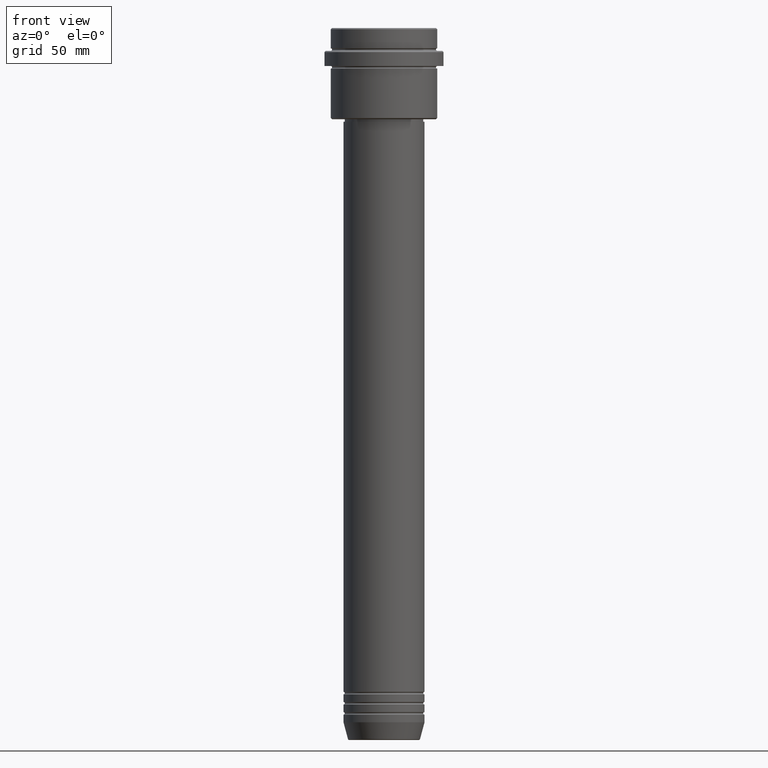
[diagram: clean part render]
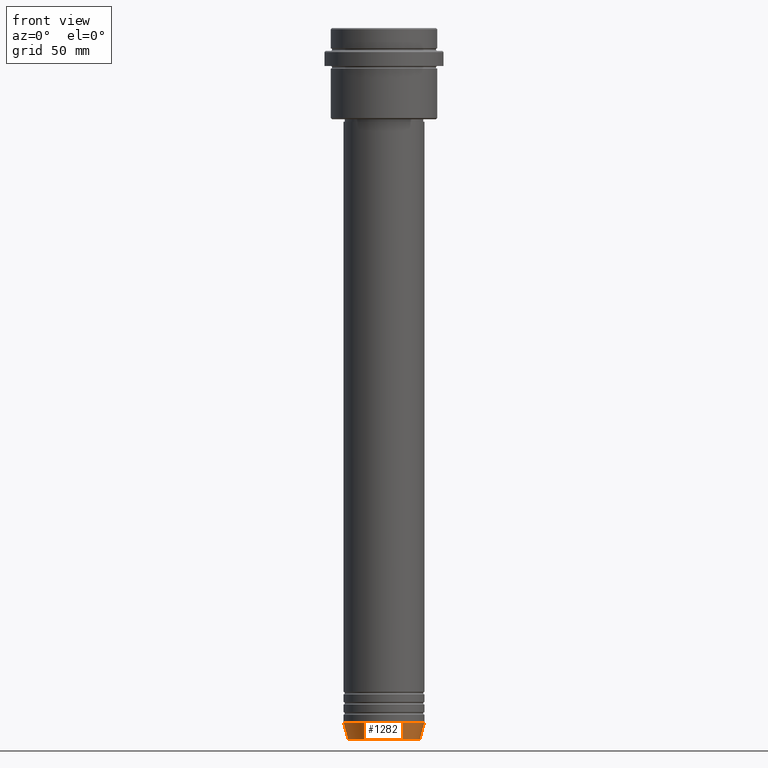
[diagram: same view with one face highlighted and labeled with its STEP entity id]
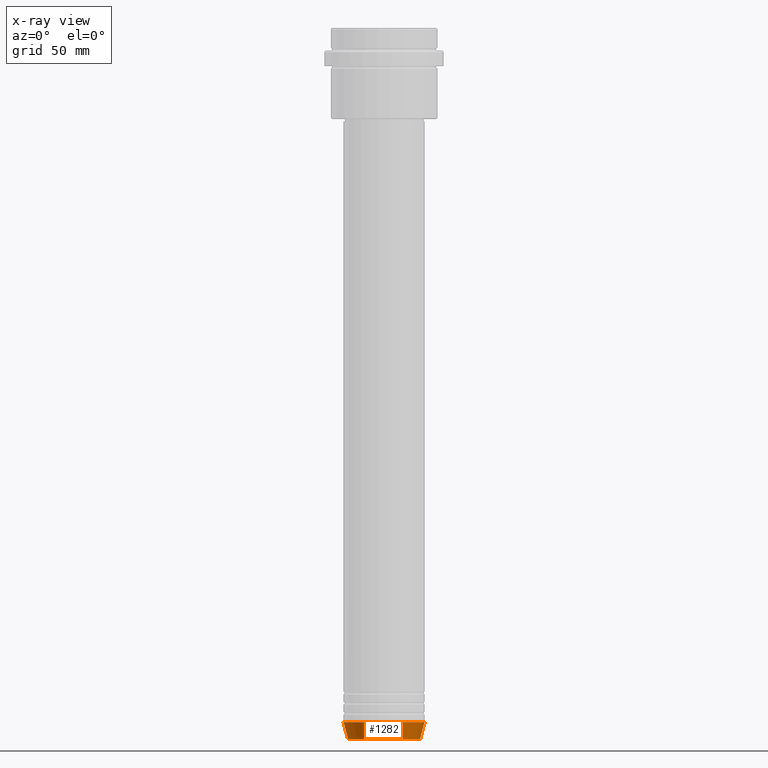
[diagram: x-ray of the same camera — body ghosted, the highlighted face saturated]
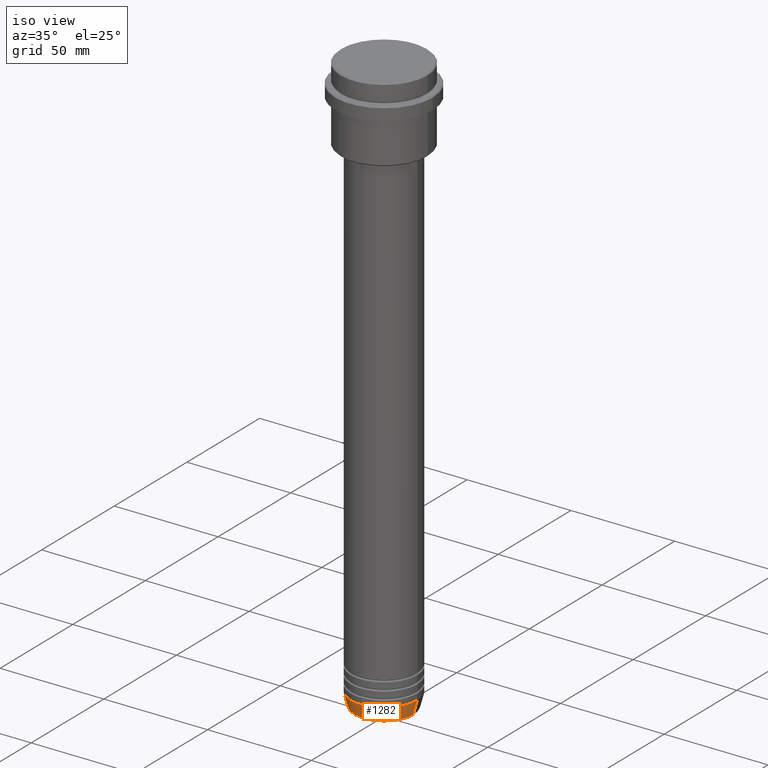
[diagram: same view with one face highlighted and labeled with its STEP entity id]
A machine part, front view. The second image highlights one B-rep face of the part: STEP entity #1282.
The next image is the same camera in x-ray: the body ghosted, the highlighted face saturated — about 0% of this face is hidden behind the body in this view.
A second angle (iso view) of the same face is appended — the face is thin or edge-on in the first view.
In plain terms, the highlighted conical surface has half-angle 15 deg.
Its self-contained STEP definition (entity closure, byte-faithful):
#31 = VERTEX_POINT ( 'NONE', #1182 ) ;
#65 = DIRECTION ( 'NONE',  ( 1.000000000000000000, 0.000000000000000000, 0.000000000000000000 ) ) ;
#93 = CARTESIAN_POINT ( 'NONE',  ( 0.000000000000000000, 0.000000000000000000, -274.0000000000000000 ) ) ;
#97 = CARTESIAN_POINT ( 'NONE',  ( -16.00000000000000000, 1.959434878635765131E-15, -274.0000000000000000 ) ) ;
#113 = LINE ( 'NONE', #97, #352 ) ;
#210 = EDGE_CURVE ( 'NONE', #226, #934, #1129, .T. ) ;
#226 = VERTEX_POINT ( 'NONE', #1124 ) ;
#271 = CARTESIAN_POINT ( 'NONE',  ( 0.000000000000000000, 0.000000000000000000, -280.6294095225512706 ) ) ;
#302 = CARTESIAN_POINT ( 'NONE',  ( 0.000000000000000000, 0.000000000000000000, -274.0000000000000000 ) ) ;
#325 = DIRECTION ( 'NONE',  ( -0.000000000000000000, -0.000000000000000000, 1.000000000000000000 ) ) ;
#340 = CIRCLE ( 'NONE', #1137, 14.22365507213718772 ) ;
#352 = VECTOR ( 'NONE', #995, 1000.000000000000000 ) ;
#386 = DIRECTION ( 'NONE',  ( 1.000000000000000000, 0.000000000000000000, 0.000000000000000000 ) ) ;
#436 = FACE_OUTER_BOUND ( 'NONE', #523, .T. ) ;
#449 = CARTESIAN_POINT ( 'NONE',  ( 16.00000000000000000, 0.000000000000000000, -274.0000000000000000 ) ) ;
#505 = ORIENTED_EDGE ( 'NONE', *, *, #617, .T. ) ;
#523 = EDGE_LOOP ( 'NONE', ( #839, #505, #943, #642 ) ) ;
#617 = EDGE_CURVE ( 'NONE', #953, #226, #340, .T. ) ;
#642 = ORIENTED_EDGE ( 'NONE', *, *, #1207, .F. ) ;
#680 = AXIS2_PLACEMENT_3D ( 'NONE', #302, #1269, #65 ) ;
#720 = DIRECTION ( 'NONE',  ( -0.000000000000000000, -0.000000000000000000, 1.000000000000000000 ) ) ;
#727 = VECTOR ( 'NONE', #1322, 1000.000000000000000 ) ;
#786 = DIRECTION ( 'NONE',  ( 1.000000000000000000, 0.000000000000000000, 0.000000000000000000 ) ) ;
#789 = CARTESIAN_POINT ( 'NONE',  ( 16.00000000000000000, 0.000000000000000000, -274.0000000000000000 ) ) ;
#839 = ORIENTED_EDGE ( 'NONE', *, *, #928, .F. ) ;
#928 = EDGE_CURVE ( 'NONE', #953, #31, #113, .T. ) ;
#934 = VERTEX_POINT ( 'NONE', #449 ) ;
#943 = ORIENTED_EDGE ( 'NONE', *, *, #210, .T. ) ;
#953 = VERTEX_POINT ( 'NONE', #1127 ) ;
#995 = DIRECTION ( 'NONE',  ( -0.2588190451025213501, 3.169619151431772337E-17, 0.9659258262890680902 ) ) ;
#1020 = CIRCLE ( 'NONE', #680, 16.00000000000000000 ) ;
#1124 = CARTESIAN_POINT ( 'NONE',  ( 14.22365507213718772, 0.000000000000000000, -280.6294095225512706 ) ) ;
#1127 = CARTESIAN_POINT ( 'NONE',  ( -14.22365507213718772, 1.850665122131323337E-15, -280.6294095225512706 ) ) ;
#1129 = LINE ( 'NONE', #789, #727 ) ;
#1137 = AXIS2_PLACEMENT_3D ( 'NONE', #271, #720, #386 ) ;
#1182 = CARTESIAN_POINT ( 'NONE',  ( -16.00000000000000000, 1.959434878635765131E-15, -274.0000000000000000 ) ) ;
#1207 = EDGE_CURVE ( 'NONE', #31, #934, #1020, .T. ) ;
#1269 = DIRECTION ( 'NONE',  ( -0.000000000000000000, -0.000000000000000000, 1.000000000000000000 ) ) ;
#1282 = ADVANCED_FACE ( 'NONE', ( #436 ), #1287, .T. ) ;
#1287 = CONICAL_SURFACE ( 'NONE', #1309, 16.00000000000000000, 0.2617993877991500740 ) ;
#1309 = AXIS2_PLACEMENT_3D ( 'NONE', #93, #325, #786 ) ;
#1322 = DIRECTION ( 'NONE',  ( 0.2588190451025213501, 0.000000000000000000, 0.9659258262890680902 ) ) ;